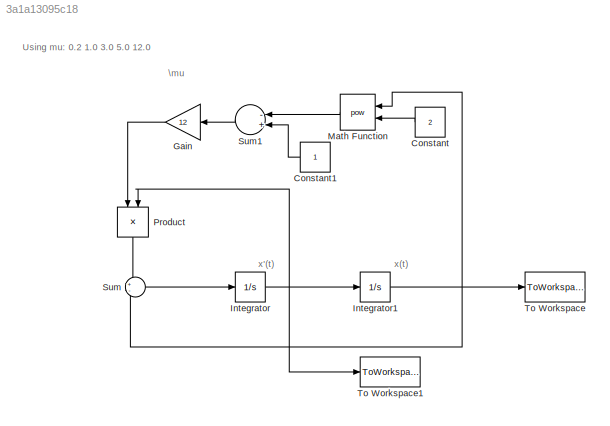
MODEL slx_3a1a13095c18
KIND model
CONFIG AbsTol = auto
CONFIG EnableMultiTasking = on
CONFIG FixedStep = auto
CONFIG MaxStep = auto
CONFIG MinStep = auto
CONFIG RelTol = 1e-3
CONFIG SampleTimeConstraint = Unconstrained
CONFIG Solver = ode45
CONFIG SolverName = ode45
CONFIG StartTime = 0.0
CONFIG StopTime = 80
BLOCK [Constant] Constant
  Value = 2
BLOCK [Constant] Constant1
BLOCK [Gain] Gain
  Gain = 12
  OutDataTypeStr = Inherit: Inherit via internal rule
  ParamDataTypeStr = Inherit: Inherit via internal rule
  SaturateOnIntegerOverflow = off
BLOCK [Integrator] Integrator
  InitialCondition = 2
  Ports = [1, 1]
BLOCK [Integrator] Integrator1
  InitialCondition = 2
  Ports = [1, 1]
BLOCK [Math] Math Function
  Operator = pow
  Ports = [2, 1]
BLOCK [Product] Product
  InputSameDT = off
  OutDataTypeStr = Inherit: Inherit via internal rule
  Ports = [2, 1]
  RndMeth = Floor
  SaturateOnIntegerOverflow = off
BLOCK [Sum] Sum
  IconShape = round
  InputSameDT = off
  Inputs = +-
  OutDataTypeStr = Inherit: Inherit via internal rule
  Ports = [2, 1]
  SaturateOnIntegerOverflow = off
BLOCK [Sum] Sum1
  InputSameDT = off
  Inputs = -+
  OutDataTypeStr = Inherit: Inherit via internal rule
  Ports = [2, 1]
  SaturateOnIntegerOverflow = off
BLOCK [ToWorkspace] To Workspace
  MaxDataPoints = inf
  Ports = [1]
  SampleTime = -1
  VariableName = x
BLOCK [ToWorkspace] To Workspace1
  MaxDataPoints = inf
  Ports = [1]
  SampleTime = -1
  VariableName = v
ANNOTATION (root): Using mu: 0.2 1.0 3.0 5.0 12.0
ANNOTATION (root): \mu
ANNOTATION (root): x'(t)
ANNOTATION (root): x(t)
LINE Constant1:1 -> Sum1:2
LINE Constant:1 -> Math Function:2
LINE Gain:1 -> Product:1
NET Integrator1:1 -> Math Function:1, Sum:2, To Workspace:1
NET Integrator:1 -> Integrator1:1, Product:2, To Workspace1:1
LINE Math Function:1 -> Sum1:1
LINE Product:1 -> Sum:1
LINE Sum1:1 -> Gain:1
LINE Sum:1 -> Integrator:1
note: NET lines group one-source signal fan-out (src -> all destinations, sorted); 1:1 wires keep LINE
